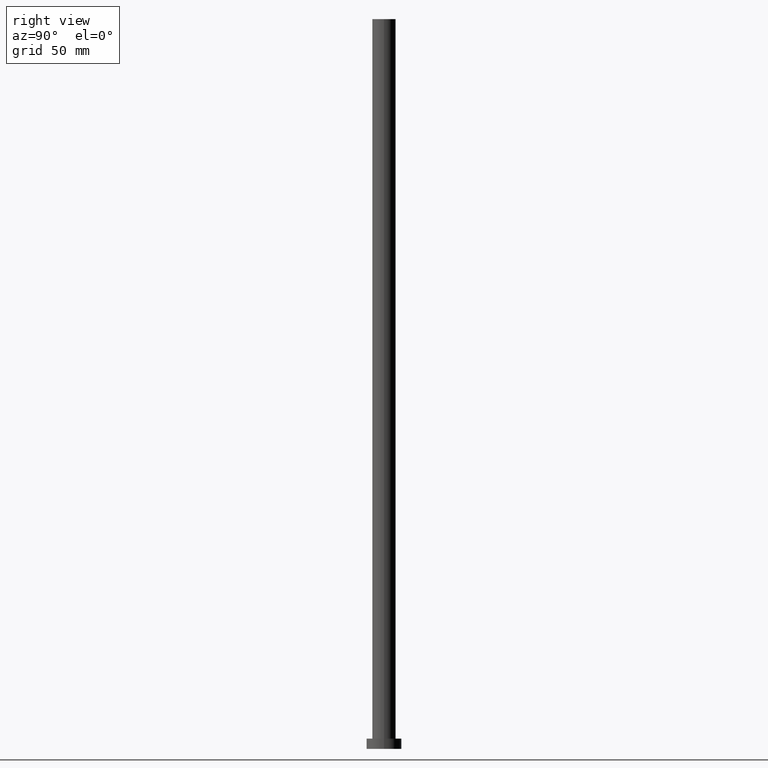
[diagram: clean part render]
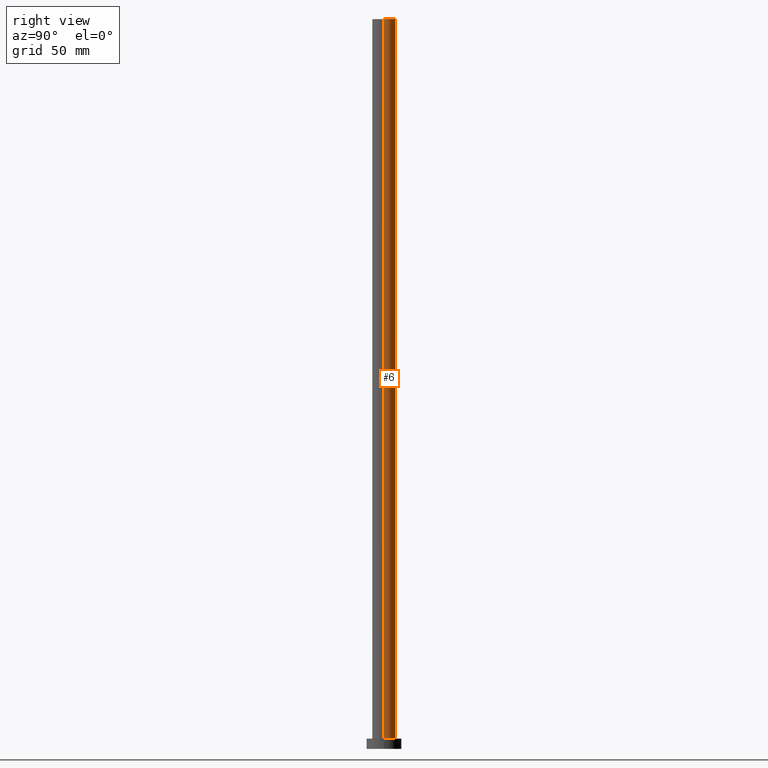
[diagram: same view with one face highlighted and labeled with its STEP entity id]
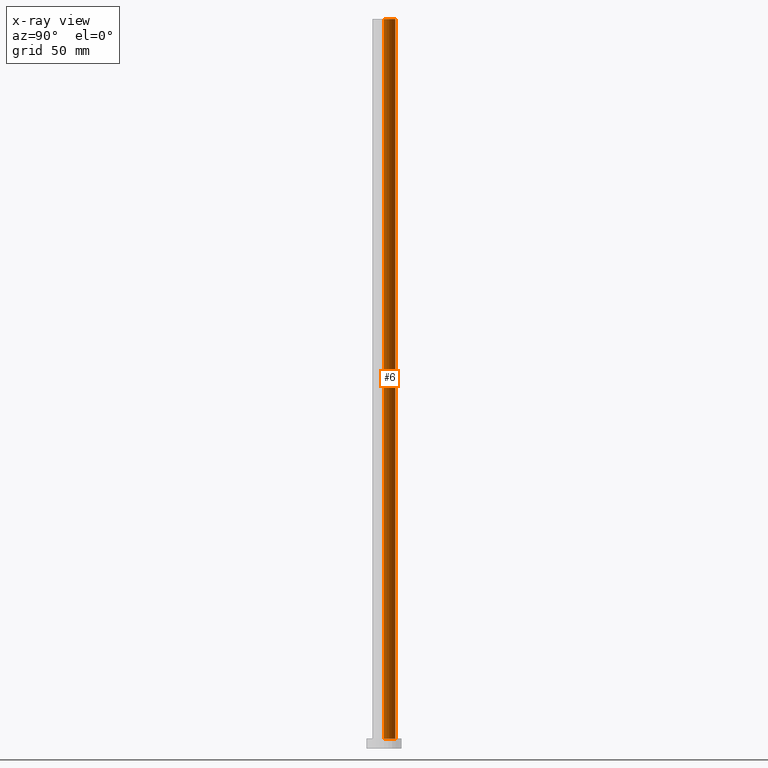
[diagram: x-ray of the same camera — body ghosted, the highlighted face saturated]
A machine part, right view. The second image highlights one B-rep face of the part: STEP entity #6.
The next image is the same camera in x-ray: the body ghosted, the highlighted face saturated — about 0% of this face is hidden behind the body in this view.
In plain terms, the highlighted cylindrical surface (edge-blend (fillet) strip) has radius 8 mm, axis along (-0, -0, -1).
Its self-contained STEP definition (entity closure, byte-faithful):
#3 = CARTESIAN_POINT ( 'NONE',  ( 8.000000000000000000, 9.797174393178825657E-16, 500.0000000000000000 ) ) ;
#4 = VERTEX_POINT ( 'NONE', #94 ) ;
#6 = ADVANCED_FACE ( 'NONE', ( #187 ), #207, .T. ) ;
#17 = CARTESIAN_POINT ( 'NONE',  ( -8.000000000000000000, 0.000000000000000000, 7.000000000000000000 ) ) ;
#21 = EDGE_CURVE ( 'NONE', #167, #112, #229, .T. ) ;
#25 = CARTESIAN_POINT ( 'NONE',  ( 8.000000000000000000, 9.797174393178825657E-16, 500.0000000000000000 ) ) ;
#40 = CARTESIAN_POINT ( 'NONE',  ( 0.000000000000000000, 0.000000000000000000, 500.0000000000000000 ) ) ;
#52 = VECTOR ( 'NONE', #231, 1000.000000000000000 ) ;
#84 = DIRECTION ( 'NONE',  ( 1.000000000000000000, 0.000000000000000000, 0.000000000000000000 ) ) ;
#85 = CARTESIAN_POINT ( 'NONE',  ( 0.000000000000000000, 0.000000000000000000, 500.0000000000000000 ) ) ;
#91 = EDGE_CURVE ( 'NONE', #112, #179, #197, .T. ) ;
#94 = CARTESIAN_POINT ( 'NONE',  ( -8.000000000000000000, 0.000000000000000000, 500.0000000000000000 ) ) ;
#112 = VERTEX_POINT ( 'NONE', #246 ) ;
#116 = DIRECTION ( 'NONE',  ( -0.000000000000000000, -0.000000000000000000, -1.000000000000000000 ) ) ;
#127 = AXIS2_PLACEMENT_3D ( 'NONE', #191, #169, #242 ) ;
#128 = EDGE_CURVE ( 'NONE', #167, #4, #203, .T. ) ;
#133 = ORIENTED_EDGE ( 'NONE', *, *, #91, .T. ) ;
#141 = DIRECTION ( 'NONE',  ( -0.000000000000000000, -0.000000000000000000, -1.000000000000000000 ) ) ;
#143 = CARTESIAN_POINT ( 'NONE',  ( -8.000000000000000000, 0.000000000000000000, 500.0000000000000000 ) ) ;
#159 = EDGE_CURVE ( 'NONE', #4, #179, #210, .T. ) ;
#167 = VERTEX_POINT ( 'NONE', #25 ) ;
#169 = DIRECTION ( 'NONE',  ( 0.000000000000000000, 0.000000000000000000, 1.000000000000000000 ) ) ;
#170 = AXIS2_PLACEMENT_3D ( 'NONE', #85, #193, #84 ) ;
#179 = VERTEX_POINT ( 'NONE', #17 ) ;
#181 = AXIS2_PLACEMENT_3D ( 'NONE', #40, #141, #239 ) ;
#187 = FACE_OUTER_BOUND ( 'NONE', #223, .T. ) ;
#191 = CARTESIAN_POINT ( 'NONE',  ( 0.000000000000000000, 0.000000000000000000, 7.000000000000000000 ) ) ;
#193 = DIRECTION ( 'NONE',  ( 0.000000000000000000, 0.000000000000000000, 1.000000000000000000 ) ) ;
#197 = CIRCLE ( 'NONE', #127, 8.000000000000000000 ) ;
#203 = CIRCLE ( 'NONE', #170, 8.000000000000000000 ) ;
#206 = ORIENTED_EDGE ( 'NONE', *, *, #159, .F. ) ;
#207 = CYLINDRICAL_SURFACE ( 'NONE', #181, 8.000000000000000000 ) ;
#210 = LINE ( 'NONE', #143, #52 ) ;
#222 = ORIENTED_EDGE ( 'NONE', *, *, #21, .T. ) ;
#223 = EDGE_LOOP ( 'NONE', ( #241, #222, #133, #206 ) ) ;
#229 = LINE ( 'NONE', #3, #240 ) ;
#231 = DIRECTION ( 'NONE',  ( -0.000000000000000000, -0.000000000000000000, -1.000000000000000000 ) ) ;
#239 = DIRECTION ( 'NONE',  ( -1.000000000000000000, 0.000000000000000000, 0.000000000000000000 ) ) ;
#240 = VECTOR ( 'NONE', #116, 1000.000000000000000 ) ;
#241 = ORIENTED_EDGE ( 'NONE', *, *, #128, .F. ) ;
#242 = DIRECTION ( 'NONE',  ( 1.000000000000000000, 0.000000000000000000, 0.000000000000000000 ) ) ;
#246 = CARTESIAN_POINT ( 'NONE',  ( 8.000000000000000000, 9.797174393178825657E-16, 7.000000000000000000 ) ) ;